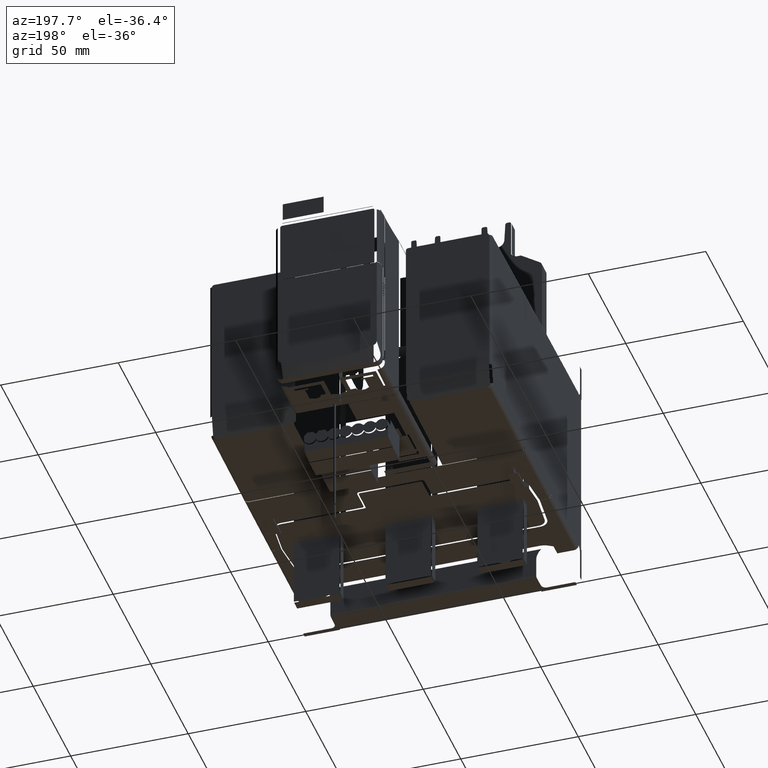
[diagram: clean part render]
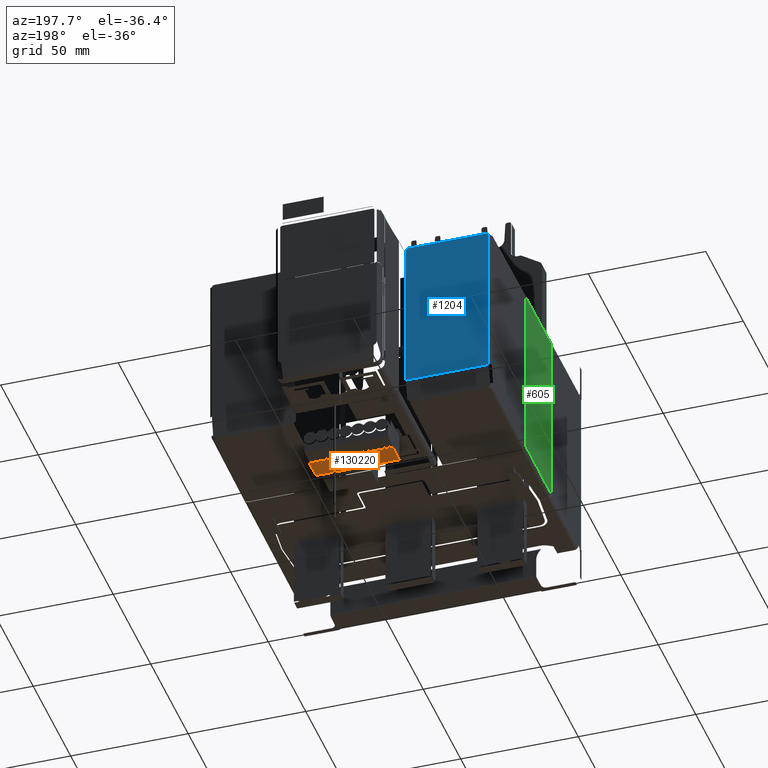
[diagram: same view with three faces highlighted in distinct colors, each labeled with its STEP entity id]
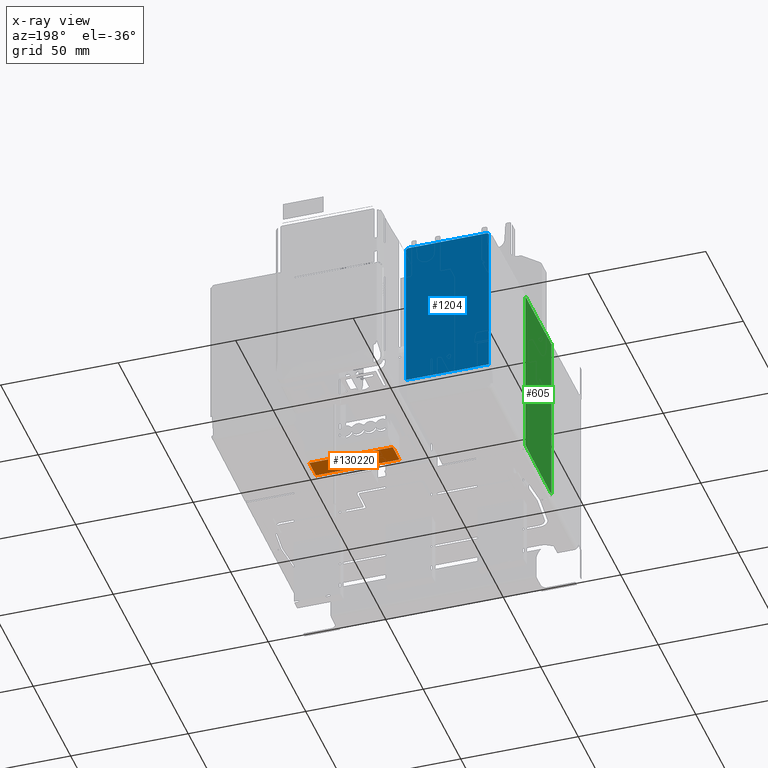
[diagram: x-ray of the same camera — body ghosted, the three highlighted faces saturated]
A machine part, auxiliary view with three faces highlighted in distinct colors.
The next image is the same camera in x-ray (body ghosted, the three faces saturated) — at least one of them is partly hidden behind the body in this view.
Their STEP definitions:

[orange] entity #130220 — the highlighted planar face has unit normal (0, 0, -1).
#129761=DIRECTION('',(0.E0,1.E0,0.E0));
#129762=VECTOR('',#129761,3.519685039370E-1);
#129763=CARTESIAN_POINT('',(-6.417322834647E-1,1.2905E0,-2.241228346457E0));
#129764=LINE('',#129763,#129762);
#129828=DIRECTION('',(0.E0,1.E0,0.E0));
#129829=VECTOR('',#129828,3.519685039370E-1);
#129830=CARTESIAN_POINT('',(7.582677165353E-1,1.2905E0,-2.241228346457E0));
#129831=LINE('',#129830,#129829);
#129856=DIRECTION('',(1.E0,0.E0,0.E0));
#129857=VECTOR('',#129856,1.4E0);
#129858=CARTESIAN_POINT('',(-6.417322834647E-1,1.2905E0,-2.241228346457E0));
#129859=LINE('',#129858,#129857);
#129860=DIRECTION('',(-1.E0,0.E0,0.E0));
#129861=VECTOR('',#129860,1.4E0);
#129862=CARTESIAN_POINT('',(7.582677165353E-1,1.642468503937E0,
-2.241228346457E0));
#129863=LINE('',#129862,#129861);
#130005=CARTESIAN_POINT('',(-6.417322834647E-1,1.2905E0,-2.241228346457E0));
#130007=VERTEX_POINT('',#130005);
#130008=CARTESIAN_POINT('',(-6.417322834647E-1,1.642468503937E0,
-2.241228346457E0));
#130009=VERTEX_POINT('',#130008);
#130019=CARTESIAN_POINT('',(7.582677165353E-1,1.2905E0,-2.241228346457E0));
#130021=VERTEX_POINT('',#130019);
#130022=CARTESIAN_POINT('',(7.582677165353E-1,1.642468503937E0,
-2.241228346457E0));
#130023=VERTEX_POINT('',#130022);
#130207=CARTESIAN_POINT('',(-6.417322834647E-1,1.2905E0,-2.241228346457E0));
#130208=DIRECTION('',(0.E0,0.E0,-1.E0));
#130209=DIRECTION('',(0.E0,1.E0,0.E0));
#130210=AXIS2_PLACEMENT_3D('',#130207,#130208,#130209);
#130211=PLANE('',#130210);
#130212=ORIENTED_EDGE('',*,*,#130131,.F.);
#130214=ORIENTED_EDGE('',*,*,#130213,.T.);
#130215=ORIENTED_EDGE('',*,*,#130190,.T.);
#130217=ORIENTED_EDGE('',*,*,#130216,.T.);
#130218=EDGE_LOOP('',(#130212,#130214,#130215,#130217));
#130219=FACE_OUTER_BOUND('',#130218,.F.);
#130220=ADVANCED_FACE('',(#130219),#130211,.T.);
#130131=EDGE_CURVE('',#130007,#130009,#129764,.T.);
#130190=EDGE_CURVE('',#130021,#130023,#129831,.T.);
#130213=EDGE_CURVE('',#130007,#130021,#129859,.T.);
#130216=EDGE_CURVE('',#130023,#130009,#129863,.T.);

[blue] entity #1204 — the highlighted planar face has unit normal (0, 1, 0).
#939=CARTESIAN_POINT('',(-2.279527559055E0,1.852362204724E0,1.484142698008E0));
#940=CARTESIAN_POINT('',(-2.282775694288E0,1.852362204724E0,1.484142510374E0));
#941=CARTESIAN_POINT('',(-2.288850534699E0,1.852362204724E0,1.483328281795E0));
#942=CARTESIAN_POINT('',(-2.296289708785E0,1.852362204724E0,1.480675125895E0));
#943=CARTESIAN_POINT('',(-2.303320218753E0,1.852362204724E0,1.476536323179E0));
#944=CARTESIAN_POINT('',(-2.309980485492E0,1.852362204724E0,1.470292560054E0));
#945=CARTESIAN_POINT('',(-2.315026052508E0,1.852362204724E0,1.462579932941E0));
#946=CARTESIAN_POINT('',(-2.318126641671E0,1.852362204724E0,1.454115360375E0));
#947=CARTESIAN_POINT('',(-2.318897385131E0,1.852362204724E0,1.447967054783E0));
#948=CARTESIAN_POINT('',(-2.318897637795E0,1.852362204724E0,1.444766622101E0));
#950=DIRECTION('',(0.E0,0.E0,1.E0));
#951=VECTOR('',#950,2.566215632497E0);
#952=CARTESIAN_POINT('',(-2.318897637795E0,1.852362204724E0,-1.121449010397E0));
#953=LINE('',#952,#951);
#954=DIRECTION('',(-1.E0,0.E0,0.E0));
#955=VECTOR('',#954,1.389763779528E0);
#956=CARTESIAN_POINT('',(-9.291338582677E-1,1.852362204724E0,
-1.121449010397E0));
#957=LINE('',#956,#955);
#958=DIRECTION('',(0.E0,0.E0,1.E0));
#959=VECTOR('',#958,2.566215632497E0);
#960=CARTESIAN_POINT('',(-9.291338582677E-1,1.852362204724E0,
-1.121449010397E0));
#961=LINE('',#960,#959);
#962=CARTESIAN_POINT('',(-9.291338582677E-1,1.852362204724E0,1.444766622101E0));
#963=CARTESIAN_POINT('',(-9.291340458607E-1,1.852362204724E0,1.448015260757E0));
#964=CARTESIAN_POINT('',(-9.299481587150E-1,1.852362204724E0,1.454091089311E0));
#965=CARTESIAN_POINT('',(-9.326009950598E-1,1.852362204724E0,1.461531578127E0));
#966=CARTESIAN_POINT('',(-9.367395007710E-1,1.852362204724E0,1.468563543862E0));
#967=CARTESIAN_POINT('',(-9.429827896335E-1,1.852362204724E0,1.475224958361E0));
#968=CARTESIAN_POINT('',(-9.506942587772E-1,1.852362204724E0,1.480270953085E0));
#969=CARTESIAN_POINT('',(-9.591571989290E-1,1.852362204724E0,1.483371686399E0));
#970=CARTESIAN_POINT('',(-9.653042114758E-1,1.852362204724E0,1.484142445320E0));
#971=CARTESIAN_POINT('',(-9.685039370079E-1,1.852362204724E0,1.484142698008E0));
#973=DIRECTION('',(-1.E0,0.E0,0.E0));
#974=VECTOR('',#973,1.311023622047E0);
#975=CARTESIAN_POINT('',(-9.685039370079E-1,1.852362204724E0,1.484142698008E0));
#976=LINE('',#975,#974);
#1153=VERTEX_POINT('',#948);
#1154=VERTEX_POINT('',#939);
#1157=CARTESIAN_POINT('',(-9.685039370079E-1,1.852362204724E0,
1.484142698008E0));
#1158=VERTEX_POINT('',#1157);
#1161=VERTEX_POINT('',#962);
#1162=CARTESIAN_POINT('',(-9.291338582677E-1,1.852362204724E0,
-1.121449010397E0));
#1163=VERTEX_POINT('',#1162);
#1181=CARTESIAN_POINT('',(-2.318897637795E0,1.852362204724E0,
-1.121449010397E0));
#1182=VERTEX_POINT('',#1181);
#1185=CARTESIAN_POINT('',(-1.624015748031E0,1.852362204724E0,0.E0));
#1186=DIRECTION('',(0.E0,1.E0,0.E0));
#1187=DIRECTION('',(1.E0,0.E0,0.E0));
#1188=AXIS2_PLACEMENT_3D('',#1185,#1186,#1187);
#1189=PLANE('',#1188);
#1191=ORIENTED_EDGE('',*,*,#1190,.T.);
#1193=ORIENTED_EDGE('',*,*,#1192,.F.);
#1195=ORIENTED_EDGE('',*,*,#1194,.F.);
#1197=ORIENTED_EDGE('',*,*,#1196,.T.);
#1199=ORIENTED_EDGE('',*,*,#1198,.T.);
#1201=ORIENTED_EDGE('',*,*,#1200,.T.);
#1202=EDGE_LOOP('',(#1191,#1193,#1195,#1197,#1199,#1201));
#1203=FACE_OUTER_BOUND('',#1202,.F.);
#1204=ADVANCED_FACE('',(#1203),#1189,.T.);
#949=B_SPLINE_CURVE_WITH_KNOTS('',3,(#939,#940,#941,#942,#943,#944,#945,#946,
#947,#948),.UNSPECIFIED.,.F.,.F.,(4,1,1,1,1,1,1,4),(0.E0,1.428571428571E-1,
2.857142857143E-1,4.285714285714E-1,5.714285714286E-1,7.142857142857E-1,
8.571428571429E-1,1.E0),.UNSPECIFIED.);
#972=B_SPLINE_CURVE_WITH_KNOTS('',3,(#962,#963,#964,#965,#966,#967,#968,#969,
#970,#971),.UNSPECIFIED.,.F.,.F.,(4,1,1,1,1,1,1,4),(0.E0,1.428571428571E-1,
2.857142857143E-1,4.285714285714E-1,5.714285714286E-1,7.142857142857E-1,
8.571428571429E-1,1.E0),.UNSPECIFIED.);
#1190=EDGE_CURVE('',#1154,#1153,#949,.T.);
#1192=EDGE_CURVE('',#1182,#1153,#953,.T.);
#1194=EDGE_CURVE('',#1163,#1182,#957,.T.);
#1196=EDGE_CURVE('',#1163,#1161,#961,.T.);
#1198=EDGE_CURVE('',#1161,#1158,#972,.T.);
#1200=EDGE_CURVE('',#1158,#1154,#976,.T.);

[green] entity #605 — the highlighted planar face has unit normal (-1, 0, 0).
#1=DIRECTION('',(0.E0,-9.999619230642E-1,8.726535498374E-3));
#2=VECTOR('',#1,1.356350858283E0);
#3=CARTESIAN_POINT('',(-2.358267716535E0,5.118110236221E-2,1.475390702489E0));
#4=LINE('',#3,#2);
#5=DIRECTION('',(0.E0,0.E0,-1.E0));
#6=VECTOR('',#5,2.974453892805E0);
#7=CARTESIAN_POINT('',(-2.358267716535E0,-1.305118110236E0,1.487226946402E0));
#8=LINE('',#7,#6);
#9=DIRECTION('',(0.E0,-9.999619230642E-1,-8.726535498374E-3));
#10=VECTOR('',#9,1.356350858283E0);
#11=CARTESIAN_POINT('',(-2.358267716535E0,5.118110236221E-2,-1.475390702489E0));
#12=LINE('',#11,#10);
#13=DIRECTION('',(0.E0,0.E0,1.E0));
#14=VECTOR('',#13,2.950781404979E0);
#15=CARTESIAN_POINT('',(-2.358267716535E0,5.118110236221E-2,-1.475390702489E0));
#16=LINE('',#15,#14);
#242=CARTESIAN_POINT('',(-2.358267716535E0,-1.305118110236E0,1.487226946402E0));
#252=CARTESIAN_POINT('',(-2.358267716535E0,-1.305118110236E0,
-1.487226946402E0));
#266=CARTESIAN_POINT('',(-2.358267716535E0,5.118110236220E-2,
-1.475390702489E0));
#481=VERTEX_POINT('',#242);
#482=CARTESIAN_POINT('',(-2.358267716535E0,5.118110236221E-2,1.475390702489E0));
#483=VERTEX_POINT('',#482);
#485=VERTEX_POINT('',#252);
#489=VERTEX_POINT('',#266);
#590=CARTESIAN_POINT('',(-2.358267716535E0,0.E0,-1.554133858268E0));
#591=DIRECTION('',(-1.E0,0.E0,0.E0));
#592=DIRECTION('',(0.E0,0.E0,1.E0));
#593=AXIS2_PLACEMENT_3D('',#590,#591,#592);
#594=PLANE('',#593);
#596=ORIENTED_EDGE('',*,*,#595,.T.);
#598=ORIENTED_EDGE('',*,*,#597,.T.);
#600=ORIENTED_EDGE('',*,*,#599,.F.);
#602=ORIENTED_EDGE('',*,*,#601,.T.);
#603=EDGE_LOOP('',(#596,#598,#600,#602));
#604=FACE_OUTER_BOUND('',#603,.F.);
#605=ADVANCED_FACE('',(#604),#594,.T.);
#595=EDGE_CURVE('',#483,#481,#4,.T.);
#597=EDGE_CURVE('',#481,#485,#8,.T.);
#599=EDGE_CURVE('',#489,#485,#12,.T.);
#601=EDGE_CURVE('',#489,#483,#16,.T.);